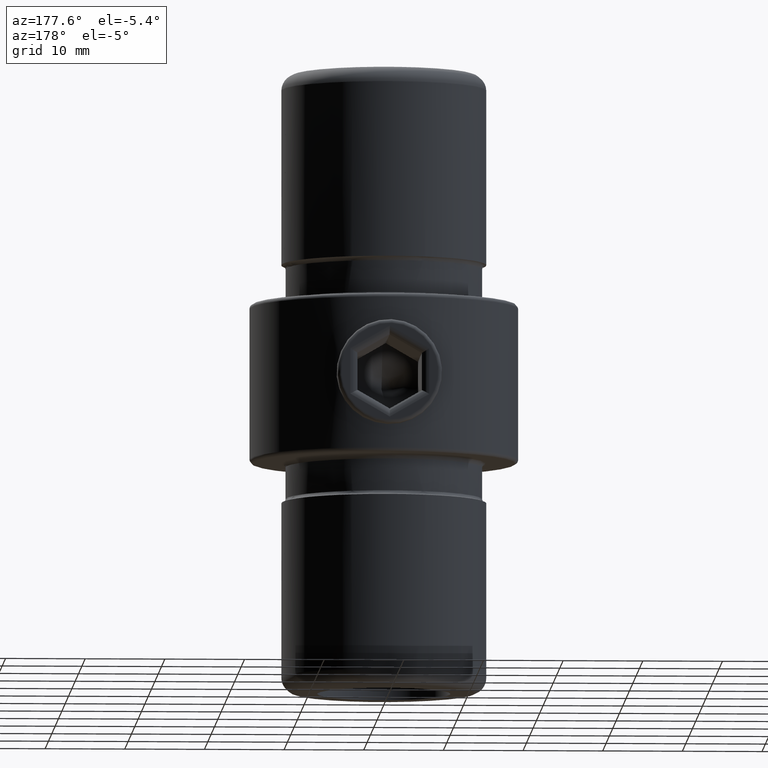
[diagram: clean part render]
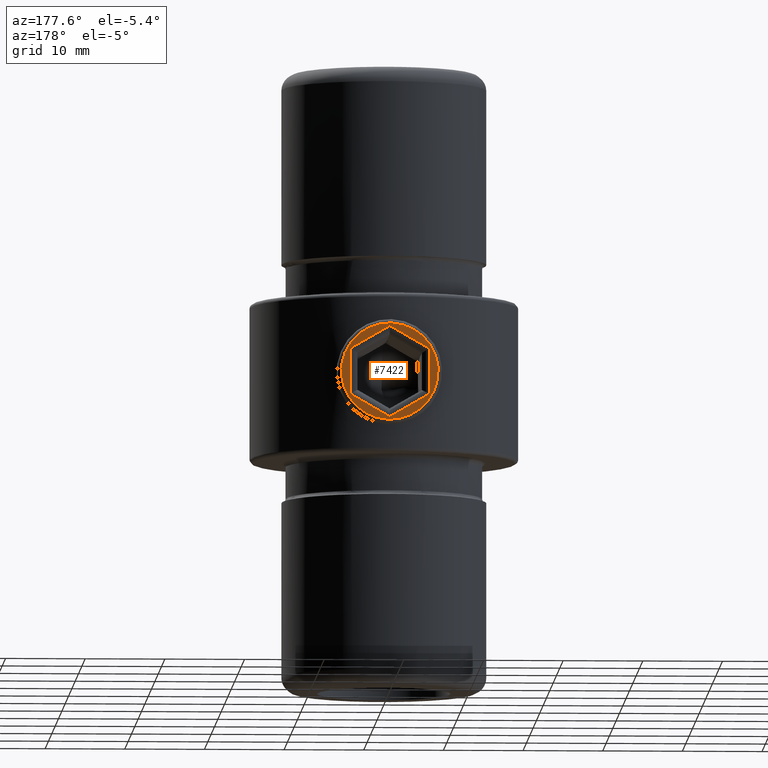
[diagram: same view with one face highlighted and labeled with its STEP entity id]
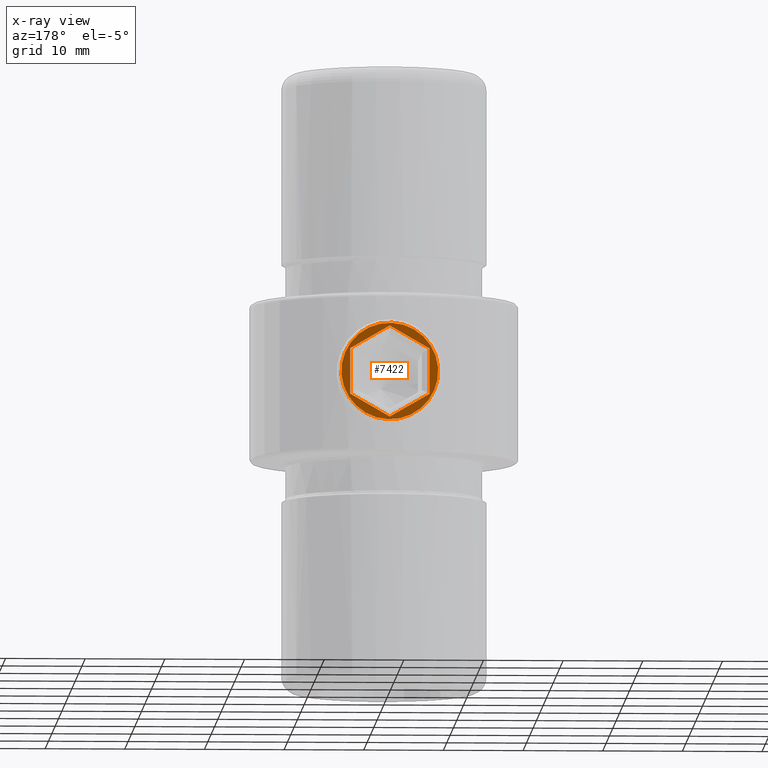
[diagram: x-ray of the same camera — body ghosted, the highlighted face saturated]
A machine part, auxiliary view. The second image highlights one B-rep face of the part: STEP entity #7422.
The next image is the same camera in x-ray: the body ghosted, the highlighted face saturated — about 0% of this face is hidden behind the body in this view.
In plain terms, the highlighted planar face has unit normal (0, 1, 0).
Its self-contained STEP definition (entity closure, byte-faithful):
#386 = ORIENTED_EDGE ( 'NONE', *, *, #658, .T. ) ;
#474 = CARTESIAN_POINT ( 'NONE',  ( 0.000000000000000000, 13.00000000000000000, 6.080000000000000071 ) ) ;
#491 = FACE_BOUND ( 'NONE', #8764, .T. ) ;
#549 = AXIS2_PLACEMENT_3D ( 'NONE', #6012, #1551, #3008 ) ;
#658 = EDGE_CURVE ( 'NONE', #1307, #5694, #877, .T. ) ;
#823 = EDGE_LOOP ( 'NONE', ( #7544 ) ) ;
#840 = EDGE_CURVE ( 'NONE', #5694, #1139, #1965, .T. ) ;
#877 = LINE ( 'NONE', #2506, #5221 ) ;
#884 = VECTOR ( 'NONE', #2796, 1000.000000000000000 ) ;
#889 = DIRECTION ( 'NONE',  ( 0.000000000000000000, -0.000000000000000000, 1.000000000000000000 ) ) ;
#982 = VERTEX_POINT ( 'NONE', #4306 ) ;
#1139 = VERTEX_POINT ( 'NONE', #4332 ) ;
#1275 = ORIENTED_EDGE ( 'NONE', *, *, #5766, .T. ) ;
#1307 = VERTEX_POINT ( 'NONE', #5590 ) ;
#1547 = EDGE_CURVE ( 'NONE', #1912, #1912, #4532, .T. ) ;
#1551 = DIRECTION ( 'NONE',  ( 0.000000000000000000, 1.000000000000000000, 0.000000000000000000 ) ) ;
#1690 = ORIENTED_EDGE ( 'NONE', *, *, #840, .T. ) ;
#1769 = DIRECTION ( 'NONE',  ( 0.4999999999999997224, 0.000000000000000000, -0.8660254037844387076 ) ) ;
#1854 = LINE ( 'NONE', #5132, #884 ) ;
#1888 = VERTEX_POINT ( 'NONE', #2867 ) ;
#1912 = VERTEX_POINT ( 'NONE', #474 ) ;
#1965 = LINE ( 'NONE', #8922, #9737 ) ;
#2374 = LINE ( 'NONE', #8923, #3527 ) ;
#2506 = CARTESIAN_POINT ( 'NONE',  ( 4.297982169499372063, 13.00000000000000000, 2.481441162532668887 ) ) ;
#2509 = ORIENTED_EDGE ( 'NONE', *, *, #7157, .T. ) ;
#2796 = DIRECTION ( 'NONE',  ( 0.4999999999999998335, -0.000000000000000000, 0.8660254037844387076 ) ) ;
#2820 = EDGE_CURVE ( 'NONE', #982, #6706, #6185, .T. ) ;
#2867 = CARTESIAN_POINT ( 'NONE',  ( 2.865321446332912636, 13.00000000000000000, -4.962882325065346656 ) ) ;
#3008 = DIRECTION ( 'NONE',  ( 0.000000000000000000, 0.000000000000000000, 1.000000000000000000 ) ) ;
#3220 = FACE_OUTER_BOUND ( 'NONE', #823, .T. ) ;
#3246 = CARTESIAN_POINT ( 'NONE',  ( -4.297982169499370286, 13.00000000000000000, -2.481441162532671552 ) ) ;
#3283 = DIRECTION ( 'NONE',  ( -0.4999999999999991673, 0.000000000000000000, 0.8660254037844390407 ) ) ;
#3527 = VECTOR ( 'NONE', #5849, 1000.000000000000000 ) ;
#3623 = DIRECTION ( 'NONE',  ( -1.000000000000000000, 0.000000000000000000, -1.855319225643643724E-16 ) ) ;
#3941 = CARTESIAN_POINT ( 'NONE',  ( 0.000000000000000000, 13.00000000000000000, 0.000000000000000000 ) ) ;
#4076 = CARTESIAN_POINT ( 'NONE',  ( -2.865321446332913080, 13.00000000000000000, -4.962882325065346656 ) ) ;
#4250 = ORIENTED_EDGE ( 'NONE', *, *, #8499, .T. ) ;
#4306 = CARTESIAN_POINT ( 'NONE',  ( -5.730642892665826160, 13.00000000000000000, 1.428169534304165692E-15 ) ) ;
#4332 = CARTESIAN_POINT ( 'NONE',  ( -2.865321446332914412, 13.00000000000000000, 4.962882325065346656 ) ) ;
#4526 = AXIS2_PLACEMENT_3D ( 'NONE', #3941, #8449, #889 ) ;
#4532 = CIRCLE ( 'NONE', #549, 6.080000000000000071 ) ;
#5048 = LINE ( 'NONE', #9638, #6242 ) ;
#5132 = CARTESIAN_POINT ( 'NONE',  ( 4.297982169499369398, 13.00000000000000000, -2.481441162532671552 ) ) ;
#5221 = VECTOR ( 'NONE', #3283, 1000.000000000000114 ) ;
#5390 = PLANE ( 'NONE',  #4526 ) ;
#5590 = CARTESIAN_POINT ( 'NONE',  ( 5.730642892665823496, 13.00000000000000000, -1.909178984288210192E-15 ) ) ;
#5694 = VERTEX_POINT ( 'NONE', #5752 ) ;
#5752 = CARTESIAN_POINT ( 'NONE',  ( 2.865321446332914412, 13.00000000000000000, 4.962882325065347544 ) ) ;
#5766 = EDGE_CURVE ( 'NONE', #1139, #982, #2374, .T. ) ;
#5849 = DIRECTION ( 'NONE',  ( -0.4999999999999998335, 0.000000000000000000, -0.8660254037844387076 ) ) ;
#6012 = CARTESIAN_POINT ( 'NONE',  ( 0.000000000000000000, 13.00000000000000000, 0.000000000000000000 ) ) ;
#6185 = LINE ( 'NONE', #3246, #6566 ) ;
#6242 = VECTOR ( 'NONE', #9745, 1000.000000000000000 ) ;
#6566 = VECTOR ( 'NONE', #1769, 1000.000000000000114 ) ;
#6706 = VERTEX_POINT ( 'NONE', #4076 ) ;
#7157 = EDGE_CURVE ( 'NONE', #1888, #1307, #1854, .T. ) ;
#7422 = ADVANCED_FACE ( 'NONE', ( #491, #3220 ), #5390, .T. ) ;
#7544 = ORIENTED_EDGE ( 'NONE', *, *, #1547, .T. ) ;
#8449 = DIRECTION ( 'NONE',  ( 0.000000000000000000, 1.000000000000000000, 0.000000000000000000 ) ) ;
#8499 = EDGE_CURVE ( 'NONE', #6706, #1888, #5048, .T. ) ;
#8764 = EDGE_LOOP ( 'NONE', ( #1275, #9070, #4250, #2509, #386, #1690 ) ) ;
#8922 = CARTESIAN_POINT ( 'NONE',  ( -9.207730992300768892E-16, 13.00000000000000000, 4.962882325065347544 ) ) ;
#8923 = CARTESIAN_POINT ( 'NONE',  ( -4.297982169499371174, 13.00000000000000000, 2.481441162532672440 ) ) ;
#9070 = ORIENTED_EDGE ( 'NONE', *, *, #2820, .T. ) ;
#9638 = CARTESIAN_POINT ( 'NONE',  ( 0.000000000000000000, 13.00000000000000000, -4.962882325065346656 ) ) ;
#9737 = VECTOR ( 'NONE', #3623, 1000.000000000000000 ) ;
#9745 = DIRECTION ( 'NONE',  ( 1.000000000000000000, -0.000000000000000000, 0.000000000000000000 ) ) ;